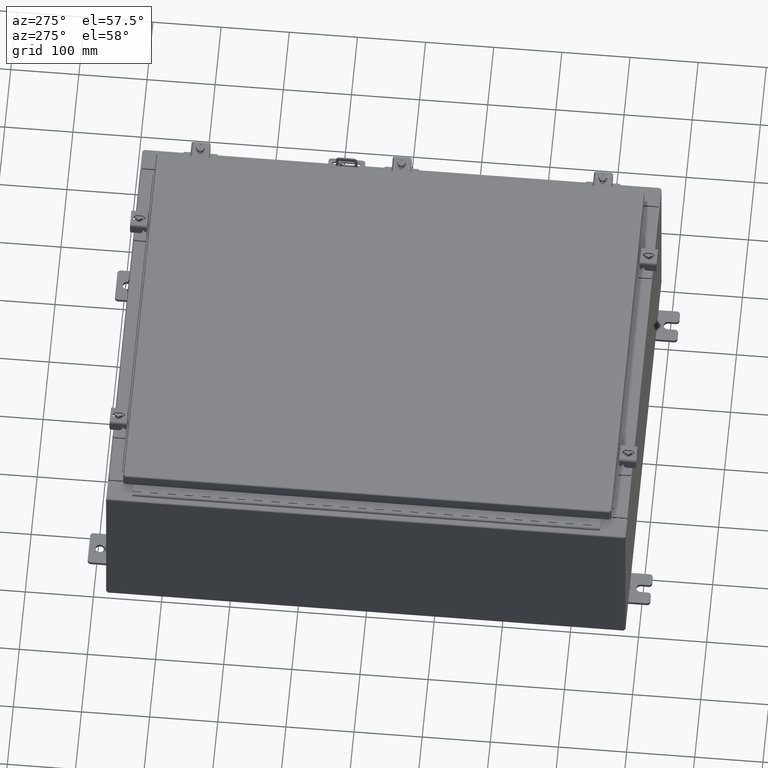
[diagram: clean part render]
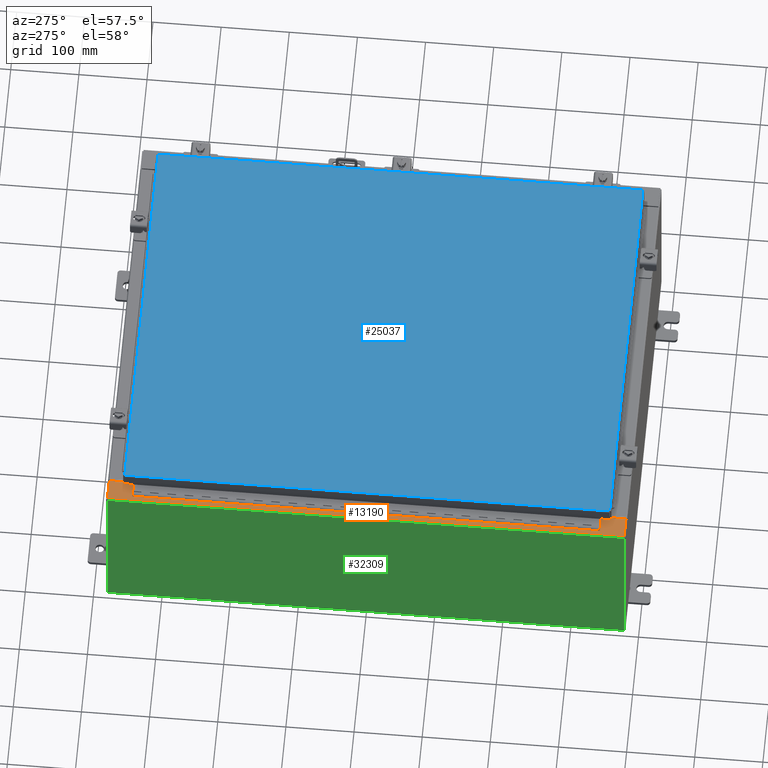
[diagram: same view with three faces highlighted in distinct colors, each labeled with its STEP entity id]
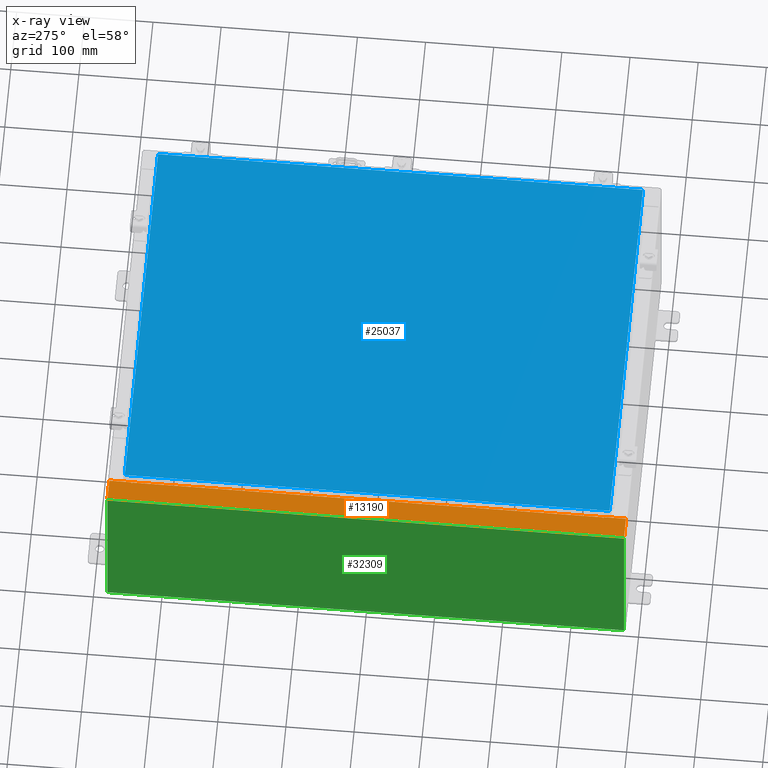
[diagram: x-ray of the same camera — body ghosted, the three highlighted faces saturated]
A machine part, auxiliary view with three faces highlighted in distinct colors.
The next image is the same camera in x-ray (body ghosted, the three faces saturated) — at least one of them is partly hidden behind the body in this view.
Their STEP definitions:

[orange] entity #13190 — the highlighted planar face has unit normal (0, 0, -1).
#58 = DIRECTION ( 'NONE',  ( 1.000000000000000000, 0.0000000000000000000, 0.0000000000000000000 ) ) ;
#436 = AXIS2_PLACEMENT_3D ( 'NONE', #20480, #2942, #23389 ) ;
#1512 = DIRECTION ( 'NONE',  ( 1.000000000000000000, 0.0000000000000000000, 0.0000000000000000000 ) ) ;
#2001 = CARTESIAN_POINT ( 'NONE',  ( -10.71270000000004300, 13.59374999999999800, 9.925300000000007100 ) ) ;
#2090 = VERTEX_POINT ( 'NONE', #31183 ) ;
#2122 = ORIENTED_EDGE ( 'NONE', *, *, #31644, .T. ) ;
#2610 = CARTESIAN_POINT ( 'NONE',  ( -10.71270000000004300, -13.59374999999998600, 9.925300000000007100 ) ) ;
#2619 = ORIENTED_EDGE ( 'NONE', *, *, #29465, .F. ) ;
#2699 = LINE ( 'NONE', #3044, #32921 ) ;
#2942 = DIRECTION ( 'NONE',  ( -7.132762385546384700E-015, -0.0000000000000000000, 1.000000000000000000 ) ) ;
#3044 = CARTESIAN_POINT ( 'NONE',  ( -10.69970000000004100, 0.0000000000000000000, 9.925300000000007100 ) ) ;
#3137 = VERTEX_POINT ( 'NONE', #4714 ) ;
#3565 = VECTOR ( 'NONE', #37282, 39.37007874015748100 ) ;
#3920 = DIRECTION ( 'NONE',  ( -1.000000000000000000, 0.0000000000000000000, 0.0000000000000000000 ) ) ;
#4463 = EDGE_CURVE ( 'NONE', #20752, #3137, #6379, .T. ) ;
#4676 = EDGE_CURVE ( 'NONE', #15815, #13976, #33826, .T. ) ;
#4714 = CARTESIAN_POINT ( 'NONE',  ( -10.75005000000004300, -13.63109999999998600, 9.925300000000007100 ) ) ;
#5549 = CARTESIAN_POINT ( 'NONE',  ( -11.91230000000003900, 14.92530000000000000, 9.925299999999998200 ) ) ;
#5772 = CARTESIAN_POINT ( 'NONE',  ( -10.69970000000004100, 0.0000000000000000000, 9.925300000000007100 ) ) ;
#5866 = EDGE_CURVE ( 'NONE', #37479, #37739, #25998, .T. ) ;
#6379 = CIRCLE ( 'NONE', #27689, 0.01867499999999949400 ) ;
#6828 = ORIENTED_EDGE ( 'NONE', *, *, #16416, .F. ) ;
#7187 = CARTESIAN_POINT ( 'NONE',  ( -10.69970000000004100, 13.63109999999999600, 9.925300000000007100 ) ) ;
#7227 = CARTESIAN_POINT ( 'NONE',  ( -10.69970000000004100, 14.92530000000000000, 9.925300000000007100 ) ) ;
#8117 = EDGE_LOOP ( 'NONE', ( #25656, #11530, #19764, #21789, #30989, #2122, #2619, #11832, #6828, #30646, #34069, #12604 ) ) ;
#8252 = CARTESIAN_POINT ( 'NONE',  ( -10.75005000000004300, -13.61242499999998600, 9.925300000000007100 ) ) ;
#8430 = EDGE_CURVE ( 'NONE', #22091, #10693, #36647, .T. ) ;
#8572 = LINE ( 'NONE', #5549, #24103 ) ;
#8690 = CARTESIAN_POINT ( 'NONE',  ( -11.91230000000003900, -14.92530000000000000, 9.925299999999998200 ) ) ;
#8869 = DIRECTION ( 'NONE',  ( 7.132762385546384700E-015, 0.0000000000000000000, -1.000000000000000000 ) ) ;
#9594 = LINE ( 'NONE', #18500, #24207 ) ;
#10251 = CARTESIAN_POINT ( 'NONE',  ( -10.75005000000004300, -13.63109999999998600, 9.925300000000007100 ) ) ;
#10693 = VERTEX_POINT ( 'NONE', #2001 ) ;
#10760 = CARTESIAN_POINT ( 'NONE',  ( -7.105562016124465400E-014, 14.92530000000000000, 9.925300000000083500 ) ) ;
#11218 = DIRECTION ( 'NONE',  ( 1.000000000000000000, 0.0000000000000000000, 0.0000000000000000000 ) ) ;
#11530 = ORIENTED_EDGE ( 'NONE', *, *, #17565, .T. ) ;
#11662 = LINE ( 'NONE', #10760, #34061 ) ;
#11832 = ORIENTED_EDGE ( 'NONE', *, *, #4463, .F. ) ;
#11964 = DIRECTION ( 'NONE',  ( -1.000000000000000000, 0.0000000000000000000, 0.0000000000000000000 ) ) ;
#12604 = ORIENTED_EDGE ( 'NONE', *, *, #15517, .F. ) ;
#13190 = ADVANCED_FACE ( 'NONE', ( #23702 ), #23392, .F. ) ;
#13513 = VECTOR ( 'NONE', #14444, 39.37007874015748100 ) ;
#13780 = CIRCLE ( 'NONE', #436, 0.01867499999999949400 ) ;
#13976 = VERTEX_POINT ( 'NONE', #24447 ) ;
#14444 = DIRECTION ( 'NONE',  ( -5.135634964896008400E-031, 1.000000000000000000, -3.663126390350707800E-045 ) ) ;
#14657 = CARTESIAN_POINT ( 'NONE',  ( -10.75005000000004300, 13.59374999999999800, 9.925300000000007100 ) ) ;
#15517 = EDGE_CURVE ( 'NONE', #13976, #22091, #13780, .T. ) ;
#15815 = VERTEX_POINT ( 'NONE', #7187 ) ;
#16027 = VECTOR ( 'NONE', #11964, 39.37007874015748100 ) ;
#16416 = EDGE_CURVE ( 'NONE', #30355, #20752, #9594, .T. ) ;
#17273 = CARTESIAN_POINT ( 'NONE',  ( -10.75005000000004300, 13.59374999999999800, 9.925300000000007100 ) ) ;
#17565 = EDGE_CURVE ( 'NONE', #15815, #24713, #35911, .T. ) ;
#18066 = EDGE_CURVE ( 'NONE', #24713, #2090, #11662, .T. ) ;
#18500 = CARTESIAN_POINT ( 'NONE',  ( -10.71270000000004300, -13.59374999999998600, 9.925300000000007100 ) ) ;
#18845 = CARTESIAN_POINT ( 'NONE',  ( -10.71270000000004300, 13.59374999999999500, 9.925300000000007100 ) ) ;
#19764 = ORIENTED_EDGE ( 'NONE', *, *, #18066, .T. ) ;
#20480 = CARTESIAN_POINT ( 'NONE',  ( -10.75005000000004300, 13.61242499999999600, 9.925300000000007100 ) ) ;
#20587 = DIRECTION ( 'NONE',  ( -5.135634964896008400E-031, 1.000000000000000000, -3.663126390350707800E-045 ) ) ;
#20634 = CARTESIAN_POINT ( 'NONE',  ( -10.69970000000004100, 13.63109999999999600, 9.925300000000007100 ) ) ;
#20752 = VERTEX_POINT ( 'NONE', #37470 ) ;
#21789 = ORIENTED_EDGE ( 'NONE', *, *, #34321, .F. ) ;
#22091 = VERTEX_POINT ( 'NONE', #17273 ) ;
#23389 = DIRECTION ( 'NONE',  ( 1.000000000000000000, 0.0000000000000000000, 0.0000000000000000000 ) ) ;
#23392 = PLANE ( 'NONE',  #24434 ) ;
#23702 = FACE_OUTER_BOUND ( 'NONE', #8117, .T. ) ;
#24024 = VECTOR ( 'NONE', #24599, 39.37007874015748100 ) ;
#24103 = VECTOR ( 'NONE', #25978, 39.37007874015748100 ) ;
#24207 = VECTOR ( 'NONE', #3920, 39.37007874015748100 ) ;
#24434 = AXIS2_PLACEMENT_3D ( 'NONE', #26356, #8869, #29317 ) ;
#24447 = CARTESIAN_POINT ( 'NONE',  ( -10.75005000000004300, 13.63109999999999600, 9.925300000000007100 ) ) ;
#24599 = DIRECTION ( 'NONE',  ( -0.0000000000000000000, -1.000000000000000000, -0.0000000000000000000 ) ) ;
#24713 = VERTEX_POINT ( 'NONE', #7227 ) ;
#25656 = ORIENTED_EDGE ( 'NONE', *, *, #4676, .F. ) ;
#25978 = DIRECTION ( 'NONE',  ( -0.0000000000000000000, 1.000000000000000000, -0.0000000000000000000 ) ) ;
#25998 = LINE ( 'NONE', #34320, #3565 ) ;
#26356 = CARTESIAN_POINT ( 'NONE',  ( -7.105562016124465400E-014, 0.0000000000000000000, 9.925300000000083500 ) ) ;
#26640 = CARTESIAN_POINT ( 'NONE',  ( -10.69970000000004100, -14.92530000000000000, 9.925300000000007100 ) ) ;
#27679 = VERTEX_POINT ( 'NONE', #28870 ) ;
#27689 = AXIS2_PLACEMENT_3D ( 'NONE', #8252, #28715, #11218 ) ;
#28499 = LINE ( 'NONE', #10251, #35360 ) ;
#28715 = DIRECTION ( 'NONE',  ( -7.132762385546384700E-015, -0.0000000000000000000, 1.000000000000000000 ) ) ;
#28870 = CARTESIAN_POINT ( 'NONE',  ( -10.69970000000004100, -13.63109999999998400, 9.925300000000007100 ) ) ;
#29317 = DIRECTION ( 'NONE',  ( -1.000000000000000000, 0.0000000000000000000, -7.132762385546384700E-015 ) ) ;
#29465 = EDGE_CURVE ( 'NONE', #3137, #27679, #28499, .T. ) ;
#29797 = VECTOR ( 'NONE', #58, 39.37007874015748100 ) ;
#30355 = VERTEX_POINT ( 'NONE', #2610 ) ;
#30646 = ORIENTED_EDGE ( 'NONE', *, *, #34073, .F. ) ;
#30989 = ORIENTED_EDGE ( 'NONE', *, *, #5866, .T. ) ;
#31183 = CARTESIAN_POINT ( 'NONE',  ( -11.91230000000003900, 14.92530000000000000, 9.925299999999998200 ) ) ;
#31213 = DIRECTION ( 'NONE',  ( -1.000000000000000000, -1.305543112181250900E-031, -7.132762385546384700E-015 ) ) ;
#31644 = EDGE_CURVE ( 'NONE', #37739, #27679, #2699, .T. ) ;
#31840 = LINE ( 'NONE', #18845, #24024 ) ;
#32921 = VECTOR ( 'NONE', #20587, 39.37007874015748100 ) ;
#33826 = LINE ( 'NONE', #20634, #16027 ) ;
#34061 = VECTOR ( 'NONE', #31213, 39.37007874015748100 ) ;
#34069 = ORIENTED_EDGE ( 'NONE', *, *, #8430, .F. ) ;
#34073 = EDGE_CURVE ( 'NONE', #10693, #30355, #31840, .T. ) ;
#34320 = CARTESIAN_POINT ( 'NONE',  ( -7.105562016124465400E-014, -14.92530000000000000, 9.925300000000083500 ) ) ;
#34321 = EDGE_CURVE ( 'NONE', #37479, #2090, #8572, .T. ) ;
#35360 = VECTOR ( 'NONE', #1512, 39.37007874015748100 ) ;
#35911 = LINE ( 'NONE', #5772, #13513 ) ;
#36647 = LINE ( 'NONE', #14657, #29797 ) ;
#37282 = DIRECTION ( 'NONE',  ( 1.000000000000000000, 0.0000000000000000000, 7.132762385546384700E-015 ) ) ;
#37470 = CARTESIAN_POINT ( 'NONE',  ( -10.75005000000004300, -13.59374999999998600, 9.925300000000007100 ) ) ;
#37479 = VERTEX_POINT ( 'NONE', #8690 ) ;
#37739 = VERTEX_POINT ( 'NONE', #26640 ) ;

[blue] entity #25037 — the highlighted planar face has unit normal (0, 0, -1).
#46 = LINE ( 'NONE', #9042, #9697 ) ;
#2589 = DIRECTION ( 'NONE',  ( -1.000000000000000000, -0.0000000000000000000, -0.0000000000000000000 ) ) ;
#2952 = CARTESIAN_POINT ( 'NONE',  ( 10.99030000000000000, -14.00629999999999800, 0.0000000000000000000 ) ) ;
#3289 = CARTESIAN_POINT ( 'NONE',  ( -10.99030000000000000, 14.00630000000000100, 0.0000000000000000000 ) ) ;
#3439 = ORIENTED_EDGE ( 'NONE', *, *, #20464, .T. ) ;
#4234 = VERTEX_POINT ( 'NONE', #19009 ) ;
#6010 = EDGE_CURVE ( 'NONE', #11958, #4234, #12745, .T. ) ;
#6085 = DIRECTION ( 'NONE',  ( 0.0000000000000000000, -1.000000000000000000, 0.0000000000000000000 ) ) ;
#6102 = ORIENTED_EDGE ( 'NONE', *, *, #23631, .T. ) ;
#6730 = CARTESIAN_POINT ( 'NONE',  ( -10.99029999999999800, -14.00629999999999800, 0.0000000000000000000 ) ) ;
#6792 = VECTOR ( 'NONE', #23405, 39.37007874015748100 ) ;
#7816 = DIRECTION ( 'NONE',  ( 1.000000000000000000, -0.0000000000000000000, -0.0000000000000000000 ) ) ;
#9042 = CARTESIAN_POINT ( 'NONE',  ( -10.99030000000000000, 14.00630000000000100, 0.0000000000000000000 ) ) ;
#9697 = VECTOR ( 'NONE', #6085, 39.37007874015748100 ) ;
#11721 = ORIENTED_EDGE ( 'NONE', *, *, #32254, .T. ) ;
#11958 = VERTEX_POINT ( 'NONE', #30233 ) ;
#12367 = CARTESIAN_POINT ( 'NONE',  ( 0.0000000000000000000, 0.0000000000000000000, 0.0000000000000000000 ) ) ;
#12745 = LINE ( 'NONE', #2952, #6792 ) ;
#12828 = VECTOR ( 'NONE', #7816, 39.37007874015748100 ) ;
#17166 = CARTESIAN_POINT ( 'NONE',  ( 10.99030000000000000, 14.00629999999999800, 0.0000000000000000000 ) ) ;
#18225 = DIRECTION ( 'NONE',  ( -1.000000000000000000, 0.0000000000000000000, -0.0000000000000000000 ) ) ;
#19009 = CARTESIAN_POINT ( 'NONE',  ( 10.99030000000000000, 14.00629999999999800, 0.0000000000000000000 ) ) ;
#19703 = AXIS2_PLACEMENT_3D ( 'NONE', #12367, #35744, #18225 ) ;
#20464 = EDGE_CURVE ( 'NONE', #31704, #23303, #46, .T. ) ;
#21422 = LINE ( 'NONE', #17166, #36050 ) ;
#21493 = LINE ( 'NONE', #28260, #12828 ) ;
#23063 = FACE_OUTER_BOUND ( 'NONE', #32108, .T. ) ;
#23303 = VERTEX_POINT ( 'NONE', #6730 ) ;
#23405 = DIRECTION ( 'NONE',  ( 0.0000000000000000000, 1.000000000000000000, 0.0000000000000000000 ) ) ;
#23631 = EDGE_CURVE ( 'NONE', #23303, #11958, #21493, .T. ) ;
#25037 = ADVANCED_FACE ( 'NONE', ( #23063 ), #32825, .F. ) ;
#28260 = CARTESIAN_POINT ( 'NONE',  ( -10.99029999999999600, -14.00629999999999800, 0.0000000000000000000 ) ) ;
#30011 = ORIENTED_EDGE ( 'NONE', *, *, #6010, .T. ) ;
#30233 = CARTESIAN_POINT ( 'NONE',  ( 10.99030000000000000, -14.00629999999999800, 0.0000000000000000000 ) ) ;
#31704 = VERTEX_POINT ( 'NONE', #3289 ) ;
#32108 = EDGE_LOOP ( 'NONE', ( #6102, #30011, #11721, #3439 ) ) ;
#32254 = EDGE_CURVE ( 'NONE', #4234, #31704, #21422, .T. ) ;
#32825 = PLANE ( 'NONE',  #19703 ) ;
#35744 = DIRECTION ( 'NONE',  ( 0.0000000000000000000, 0.0000000000000000000, -1.000000000000000000 ) ) ;
#36050 = VECTOR ( 'NONE', #2589, 39.37007874015748100 ) ;

[green] entity #32309 — the highlighted planar face has unit normal (1, 0, 0).
#1823 = LINE ( 'NONE', #15425, #32078 ) ;
#2060 = ORIENTED_EDGE ( 'NONE', *, *, #29231, .T. ) ;
#5216 = CARTESIAN_POINT ( 'NONE',  ( -12.00000000000004100, 14.92530000000000000, 9.837599999999998300 ) ) ;
#5534 = VERTEX_POINT ( 'NONE', #29755 ) ;
#5685 = CARTESIAN_POINT ( 'NONE',  ( -12.00000000000000500, 0.0000000000000000000, -4.253145845136049800E-014 ) ) ;
#5808 = DIRECTION ( 'NONE',  ( 3.523082860860887800E-015, 0.0000000000000000000, -1.000000000000000000 ) ) ;
#8595 = EDGE_CURVE ( 'NONE', #26072, #28616, #1823, .T. ) ;
#8698 = ORIENTED_EDGE ( 'NONE', *, *, #33350, .T. ) ;
#9234 = CARTESIAN_POINT ( 'NONE',  ( -12.00000000000000500, 14.92530000000000000, -4.253145845136049800E-014 ) ) ;
#10333 = ORIENTED_EDGE ( 'NONE', *, *, #30918, .F. ) ;
#11955 = LINE ( 'NONE', #25999, #33433 ) ;
#12407 = VERTEX_POINT ( 'NONE', #5216 ) ;
#15102 = CARTESIAN_POINT ( 'NONE',  ( -12.00000000000004100, -14.92530000000000000, 9.837599999999998300 ) ) ;
#15425 = CARTESIAN_POINT ( 'NONE',  ( -12.00000000000000500, -14.92530000000000000, -4.253145845136049800E-014 ) ) ;
#17300 = DIRECTION ( 'NONE',  ( -0.0000000000000000000, 1.000000000000000000, -0.0000000000000000000 ) ) ;
#20373 = PLANE ( 'NONE',  #30434 ) ;
#22712 = LINE ( 'NONE', #27707, #29602 ) ;
#23282 = DIRECTION ( 'NONE',  ( 1.000000000000000000, 0.0000000000000000000, 3.523082860860887800E-015 ) ) ;
#25999 = CARTESIAN_POINT ( 'NONE',  ( -12.00000000000000500, 14.92530000000000000, 0.01299999999999985200 ) ) ;
#26072 = VERTEX_POINT ( 'NONE', #26462 ) ;
#26462 = CARTESIAN_POINT ( 'NONE',  ( -12.00000000000000500, -14.92530000000000000, 0.01299999999999985200 ) ) ;
#27107 = LINE ( 'NONE', #9234, #35831 ) ;
#27366 = EDGE_LOOP ( 'NONE', ( #8698, #2060, #10333, #36919 ) ) ;
#27707 = CARTESIAN_POINT ( 'NONE',  ( -12.00000000000004100, -14.92530000000000000, 9.837599999999998300 ) ) ;
#28290 = FACE_OUTER_BOUND ( 'NONE', #27366, .T. ) ;
#28616 = VERTEX_POINT ( 'NONE', #15102 ) ;
#29231 = EDGE_CURVE ( 'NONE', #12407, #5534, #27107, .T. ) ;
#29602 = VECTOR ( 'NONE', #30682, 39.37007874015748100 ) ;
#29699 = DIRECTION ( 'NONE',  ( 3.523082860860888200E-015, 0.0000000000000000000, -1.000000000000000000 ) ) ;
#29755 = CARTESIAN_POINT ( 'NONE',  ( -12.00000000000000500, 14.92530000000000000, 0.01299999999999984300 ) ) ;
#30434 = AXIS2_PLACEMENT_3D ( 'NONE', #5685, #23282, #5808 ) ;
#30682 = DIRECTION ( 'NONE',  ( 0.0000000000000000000, 1.000000000000000000, 0.0000000000000000000 ) ) ;
#30918 = EDGE_CURVE ( 'NONE', #26072, #5534, #11955, .T. ) ;
#32078 = VECTOR ( 'NONE', #32950, 39.37007874015748100 ) ;
#32309 = ADVANCED_FACE ( 'NONE', ( #28290 ), #20373, .F. ) ;
#32950 = DIRECTION ( 'NONE',  ( -3.523082860860888200E-015, 0.0000000000000000000, 1.000000000000000000 ) ) ;
#33350 = EDGE_CURVE ( 'NONE', #28616, #12407, #22712, .T. ) ;
#33433 = VECTOR ( 'NONE', #17300, 39.37007874015748100 ) ;
#35831 = VECTOR ( 'NONE', #29699, 39.37007874015748100 ) ;
#36919 = ORIENTED_EDGE ( 'NONE', *, *, #8595, .T. ) ;